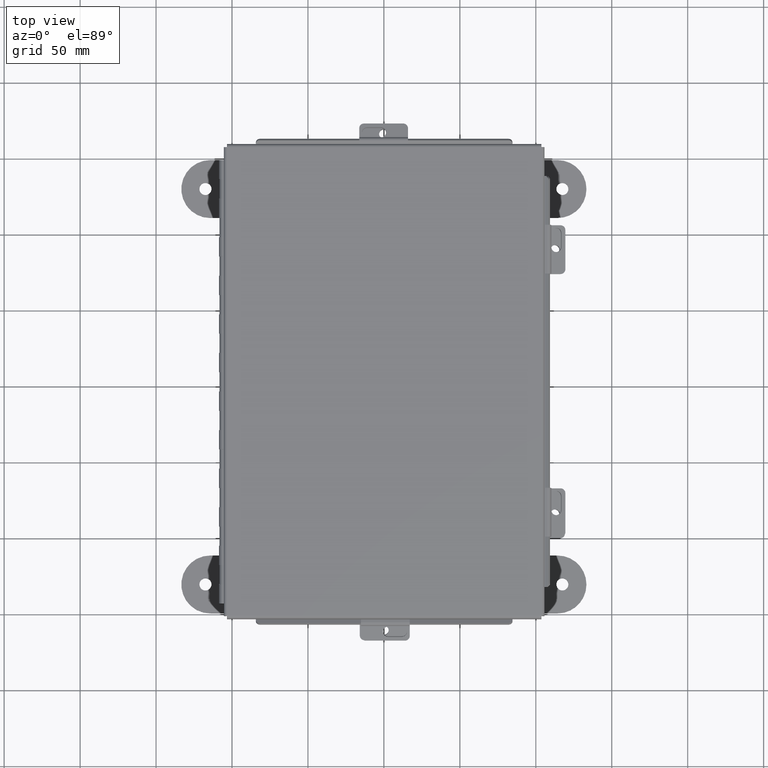
[diagram: clean part render]
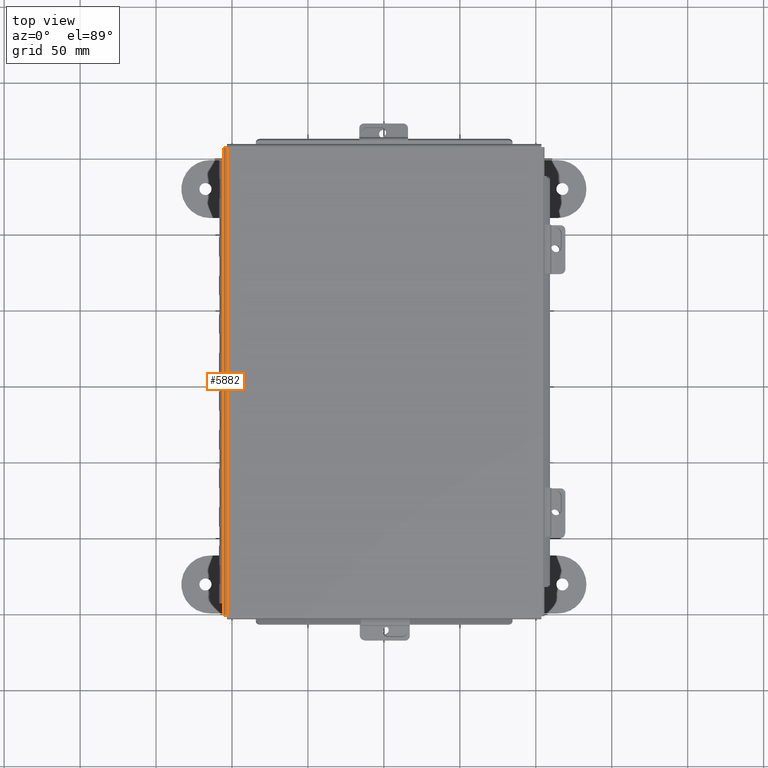
[diagram: same view with one face highlighted and labeled with its STEP entity id]
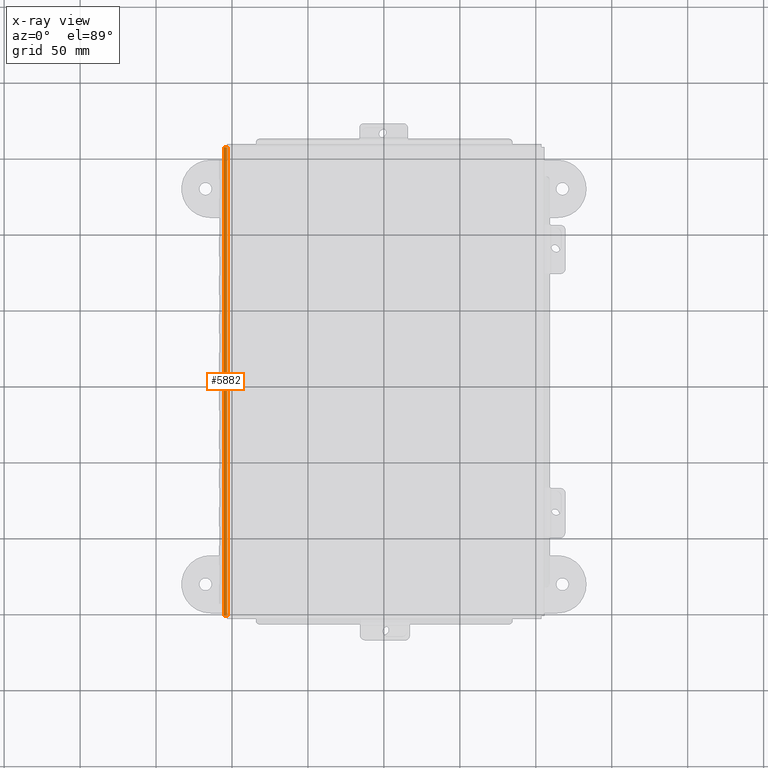
[diagram: x-ray of the same camera — body ghosted, the highlighted face saturated]
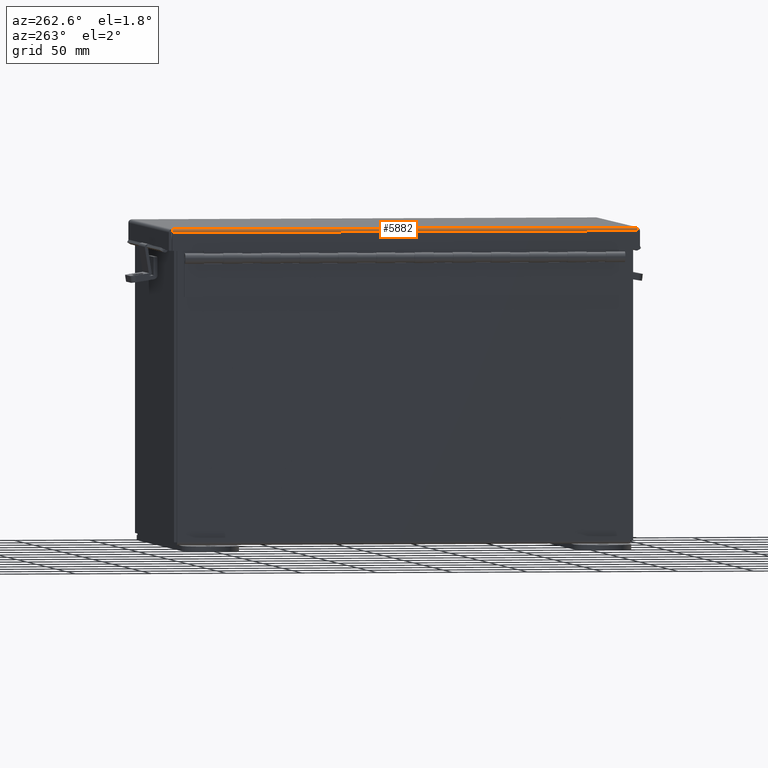
[diagram: same view with one face highlighted and labeled with its STEP entity id]
A machine part, top view. The second image highlights one B-rep face of the part: STEP entity #5882.
The next image is the same camera in x-ray: the body ghosted, the highlighted face saturated — about 0% of this face is hidden behind the body in this view.
A second angle (auxiliary view) of the same face is appended — the face is thin or edge-on in the first view.
In plain terms, the highlighted cylindrical surface (edge-blend (fillet) strip) has radius 2.2276 mm, axis along (0, 1, 0).
Its self-contained STEP definition (entity closure, byte-faithful):
#14 = FACE_OUTER_BOUND ( 'NONE', #2252, .T. ) ;
#21 = CARTESIAN_POINT ( 'NONE',  ( 4.068550000000013400, 6.074478932188134700, -0.07470000000000015500 ) ) ;
#743 = DIRECTION ( 'NONE',  ( 1.000000000000000000, 0.0000000000000000000, -3.358350761880586900E-015 ) ) ;
#985 = EDGE_CURVE ( 'NONE', #5329, #1489, #1502, .T. ) ;
#1058 = CARTESIAN_POINT ( 'NONE',  ( 4.156250000000018700, -6.156250000000000000, 0.01300000000000010700 ) ) ;
#1403 = CARTESIAN_POINT ( 'NONE',  ( 4.068550000000013400, -6.068550000000001000, -0.07470000000000015500 ) ) ;
#1489 = VERTEX_POINT ( 'NONE', #2415 ) ;
#1502 = B_SPLINE_CURVE_WITH_KNOTS ( 'NONE', 3,
 ( #3522, #12849, #1991, #13915, #11771, #2903, #1838, #7169, #4494, #4437 ),
 .UNSPECIFIED., .F., .F.,
 ( 4, 2, 2, 2, 4 ),
 ( 0.0000000000000000000, 0.2500000000000000000, 0.5000000000000000000, 0.7500000000000000000, 1.000000000000000000 ),
 .UNSPECIFIED. ) ;
#1838 = CARTESIAN_POINT ( 'NONE',  ( 4.112717384578546700, 6.070526310729377400, -0.06363106625866876700 ) ) ;
#1991 = CARTESIAN_POINT ( 'NONE',  ( 4.153967403743830100, 6.073490776823447800, -0.009955289458309124100 ) ) ;
#2206 = CARTESIAN_POINT ( 'NONE',  ( 4.153967403743831000, -6.073490776823449600, -0.009955289458309124100 ) ) ;
#2252 = EDGE_LOOP ( 'NONE', ( #14277, #2355, #12369, #5772 ) ) ;
#2355 = ORIENTED_EDGE ( 'NONE', *, *, #985, .F. ) ;
#2415 = CARTESIAN_POINT ( 'NONE',  ( 4.068550000000013400, 6.068549999999999200, -0.07470000000000015500 ) ) ;
#2416 = CARTESIAN_POINT ( 'NONE',  ( 4.145181066258686500, -6.072502621458758300, -0.03116738457852816600 ) ) ;
#2532 = LINE ( 'NONE', #21, #9055 ) ;
#2903 = CARTESIAN_POINT ( 'NONE',  ( 4.122445747341816800, 6.071020388411723100, -0.05713078207832072300 ) ) ;
#3522 = CARTESIAN_POINT ( 'NONE',  ( 4.156250000000018700, 6.074478932188134700, 0.01300000000000010700 ) ) ;
#4374 = EDGE_CURVE ( 'NONE', #13404, #12857, #5562, .T. ) ;
#4437 = CARTESIAN_POINT ( 'NONE',  ( 4.068550000000013400, 6.068549999999999200, -0.07470000000000015500 ) ) ;
#4494 = CARTESIAN_POINT ( 'NONE',  ( 4.080029903155011800, 6.069044077682343100, -0.07470000000000036300 ) ) ;
#4620 = CARTESIAN_POINT ( 'NONE',  ( 4.080029903155010000, -6.069044077682344900, -0.07470000000000033600 ) ) ;
#5329 = VERTEX_POINT ( 'NONE', #5900 ) ;
#5562 = B_SPLINE_CURVE_WITH_KNOTS ( 'NONE', 3,
 ( #1403, #4620, #7503, #11286, #14699, #9946, #2416, #2206, #8308, #7447 ),
 .UNSPECIFIED., .F., .F.,
 ( 4, 2, 2, 2, 4 ),
 ( 0.0000000000000000000, 0.2500000000000000000, 0.5000000000000000000, 0.7500000000000000000, 1.000000000000000000 ),
 .UNSPECIFIED. ) ;
#5772 = ORIENTED_EDGE ( 'NONE', *, *, #4374, .F. ) ;
#5882 = ADVANCED_FACE ( 'NONE', ( #14 ), #9355, .T. ) ;
#5900 = CARTESIAN_POINT ( 'NONE',  ( 4.156250000000018700, 6.074478932188134700, 0.01300000000000010700 ) ) ;
#6519 = EDGE_CURVE ( 'NONE', #5329, #12857, #13538, .T. ) ;
#6637 = AXIS2_PLACEMENT_3D ( 'NONE', #14305, #13138, #743 ) ;
#7169 = CARTESIAN_POINT ( 'NONE',  ( 4.091505289458327300, 6.069538155364689700, -0.07241740374381162900 ) ) ;
#7323 = DIRECTION ( 'NONE',  ( 1.102734587254376400E-030, -1.000000000000000000, 7.543482406175925400E-030 ) ) ;
#7447 = CARTESIAN_POINT ( 'NONE',  ( 4.156250000000018700, -6.074478932188137400, 0.01300000000000010700 ) ) ;
#7503 = CARTESIAN_POINT ( 'NONE',  ( 4.091505289458327300, -6.069538155364688800, -0.07241740374381162900 ) ) ;
#8292 = CARTESIAN_POINT ( 'NONE',  ( 4.068550000000013400, -6.068550000000001000, -0.07470000000000015500 ) ) ;
#8308 = CARTESIAN_POINT ( 'NONE',  ( 4.156250000000018700, -6.073984854505791700, 0.001520096845007075000 ) ) ;
#8315 = EDGE_CURVE ( 'NONE', #1489, #13404, #2532, .T. ) ;
#9055 = VECTOR ( 'NONE', #7323, 39.37007874015748100 ) ;
#9355 = CYLINDRICAL_SURFACE ( 'NONE', #6637, 0.08770000000000026400 ) ;
#9612 = DIRECTION ( 'NONE',  ( 1.102734587254376400E-030, -1.000000000000000000, 7.543482406175925400E-030 ) ) ;
#9946 = CARTESIAN_POINT ( 'NONE',  ( 4.138680782078339800, -6.072008543776413500, -0.04089574734180034100 ) ) ;
#10740 = CARTESIAN_POINT ( 'NONE',  ( 4.156250000000018700, -6.074478932188137400, 0.01300000000000010700 ) ) ;
#11286 = CARTESIAN_POINT ( 'NONE',  ( 4.112717384578545900, -6.070526310729379200, -0.06363106625866876700 ) ) ;
#11771 = CARTESIAN_POINT ( 'NONE',  ( 4.138680782078339800, 6.072008543776412600, -0.04089574734180032700 ) ) ;
#12369 = ORIENTED_EDGE ( 'NONE', *, *, #6519, .T. ) ;
#12849 = CARTESIAN_POINT ( 'NONE',  ( 4.156250000000018700, 6.073984854505789100, 0.001520096845007074400 ) ) ;
#12857 = VERTEX_POINT ( 'NONE', #10740 ) ;
#13138 = DIRECTION ( 'NONE',  ( -1.102734587254376400E-030, 1.000000000000000000, -7.543482406175925400E-030 ) ) ;
#13167 = VECTOR ( 'NONE', #9612, 39.37007874015748100 ) ;
#13404 = VERTEX_POINT ( 'NONE', #8292 ) ;
#13538 = LINE ( 'NONE', #1058, #13167 ) ;
#13915 = CARTESIAN_POINT ( 'NONE',  ( 4.145181066258686500, 6.072502621458755600, -0.03116738457852816600 ) ) ;
#14277 = ORIENTED_EDGE ( 'NONE', *, *, #8315, .F. ) ;
#14305 = CARTESIAN_POINT ( 'NONE',  ( 4.068550000000017900, 6.074478932188134700, 0.01300000000000010700 ) ) ;
#14699 = CARTESIAN_POINT ( 'NONE',  ( 4.122445747341817700, -6.071020388411723100, -0.05713078207832071600 ) ) ;